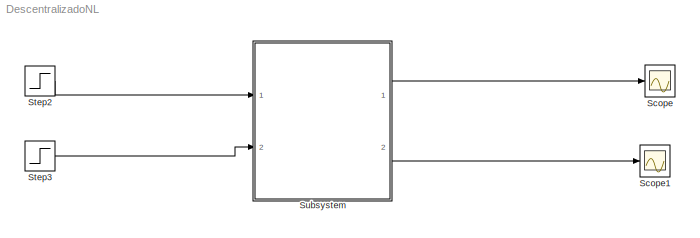
MODEL DescentralizadoNL
KIND model
BLOCK [Scope] Scope
  DataFormat = StructureWithTime
  Floating = off
  NumInputPorts = 1
  Ports = [1]
  SID = 233
  SampleTime = 0
BLOCK [Scope] Scope1
  DataFormat = StructureWithTime
  Floating = off
  NumInputPorts = 1
  Ports = [1]
  SID = 236
  SampleTime = 0
  SaveName = ScopeData1
BLOCK [Step] Step2
  After = QT.ctes.h0(1)*QT.ctes.kc
  Before = QT.ctes.h0(1)*QT.ctes.kc
  SID = 217
  SampleTime = 0
  Time = 200
BLOCK [Step] Step3
  After = QT.ctes.h0(2)*QT.ctes.kc
  Before = QT.ctes.h0(2)*QT.ctes.kc
  SID = 218
  SampleTime = 0
  Time = 1000
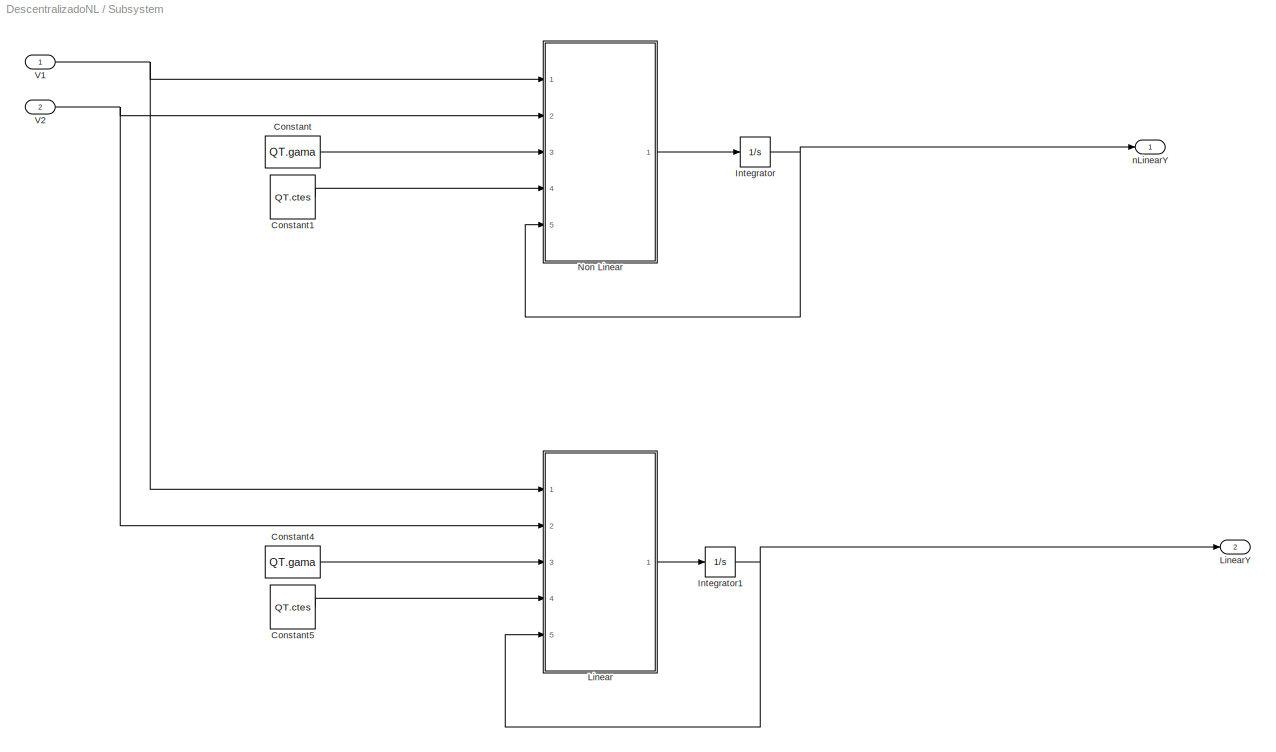
BLOCK [SubSystem] Subsystem
  FunctionWithSeparateData = off
  MaskHideContents = off
  MinAlgLoopOccurrences = off
  Opaque = off
  Ports = [2, 2]
  PropExecContextOutsideSubsystem = off
  RTWSystemCode = Auto
  RequestExecContextInheritance = off
  SID = 179
BLOCK [Constant] Subsystem/Constant
  SID = 182
  Value = QT.gama
BLOCK [Constant] Subsystem/Constant1
  OutDataTypeStr = Bus: slBus1
  SID = 183
  Value = QT.ctes
  VectorParams1D = off
BLOCK [Constant] Subsystem/Constant4
  SID = 185
  Value = QT.gama
BLOCK [Constant] Subsystem/Constant5
  OutDataTypeStr = Bus: slBus1
  SID = 186
  Value = QT.ctes
  VectorParams1D = off
BLOCK [Integrator] Subsystem/Integrator
  InitialCondition = QT.ctes.h0
  Ports = [1, 1]
  SID = 188
BLOCK [Integrator] Subsystem/Integrator1
  Ports = [1, 1]
  SID = 189
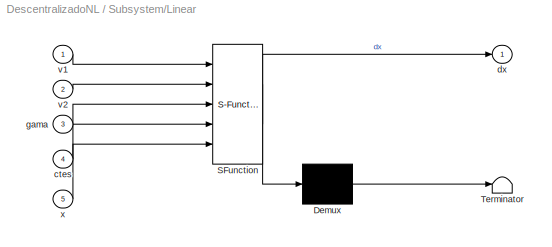
BLOCK [SubSystem] Subsystem/Linear
  ErrorFcn = Stateflow.Translate.translate
  FunctionWithSeparateData = off
  MaskDescription = Embedded MATLAB block
  MaskDisplay = bgColor = Simulink.Root.ColorString2Rgb(get_param(gcbh, 'BackgroundColor')); image(imread('private/eml_membrane_16.png','png','BackgroundColor',bgColor(1:3)),'center'); disp([10 10 'linsys']);
  MaskHideContents = off
  MaskIconFrame = on
  MaskIconOpaque = off
  MaskIconRotate = none
  MaskIconUnits = normalized
  MaskPortRotate = default
  MaskSelfModifiable = on
  MaskType = Stateflow
  MinAlgLoopOccurrences = off
  Opaque = off
  PermitHierarchicalResolution = ExplicitOnly
  Ports = [5, 1]
  PropExecContextOutsideSubsystem = off
  RTWSystemCode = Auto
  RequestExecContextInheritance = off
  SID = 190
  TreatAsAtomicUnit = on
BLOCK [Demux] Subsystem/Linear/ Demux 
  Outputs = 1
  Ports = [1, 1]
  SID = 190::15
BLOCK [S-Function] Subsystem/Linear/ SFunction 
  EnableBusSupport = on
  FunctionName = sf_sfun
  PortCounts = [5 2]
  Ports = [5, 2]
  SID = 190::14
  Tag = Stateflow S-Function DescentralizadoNL 1
BLOCK [Terminator] Subsystem/Linear/ Terminator 
  SID = 190::17
BLOCK [Inport] Subsystem/Linear/ctes
  IconDisplay = Port number
  Port = 4
  SID = 190::21
BLOCK [Outport] Subsystem/Linear/dx
  IconDisplay = Port number
  SID = 190::5
BLOCK [Inport] Subsystem/Linear/gama
  IconDisplay = Port number
  Port = 3
  SID = 190::19
BLOCK [Inport] Subsystem/Linear/v1
  IconDisplay = Port number
  SID = 190::1
BLOCK [Inport] Subsystem/Linear/v2
  IconDisplay = Port number
  Port = 2
  SID = 190::18
BLOCK [Inport] Subsystem/Linear/x
  IconDisplay = Port number
  Port = 5
  SID = 190::20
BLOCK [Outport] Subsystem/LinearY
  IconDisplay = Port number
  Port = 2
  SID = 195
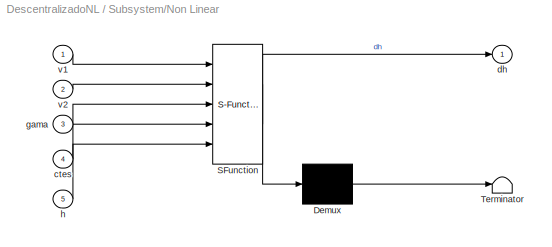
BLOCK [SubSystem] Subsystem/Non Linear
  ErrorFcn = Stateflow.Translate.translate
  FunctionWithSeparateData = off
  MaskDescription = Embedded MATLAB block
  MaskDisplay = bgColor = Simulink.Root.ColorString2Rgb(get_param(gcbh, 'BackgroundColor')); image(imread('private/eml_membrane_16.png','png','BackgroundColor',bgColor(1:3)),'center'); disp([10 10 'fcn']);
  MaskHideContents = off
  MaskIconFrame = on
  MaskIconOpaque = off
  MaskIconRotate = none
  MaskIconUnits = normalized
  MaskPortRotate = default
  MaskSelfModifiable = on
  MaskType = Stateflow
  MinAlgLoopOccurrences = off
  Opaque = off
  PermitHierarchicalResolution = ExplicitOnly
  Ports = [5, 1]
  PropExecContextOutsideSubsystem = off
  RTWSystemCode = Auto
  RequestExecContextInheritance = off
  SID = 191
  TreatAsAtomicUnit = on
BLOCK [Demux] Subsystem/Non Linear/ Demux 
  Outputs = 1
  Ports = [1, 1]
  SID = 191::15
BLOCK [S-Function] Subsystem/Non Linear/ SFunction 
  EnableBusSupport = on
  FunctionName = sf_sfun
  PortCounts = [5 2]
  Ports = [5, 2]
  SID = 191::14
  Tag = Stateflow S-Function DescentralizadoNL 2
BLOCK [Terminator] Subsystem/Non Linear/ Terminator 
  SID = 191::17
BLOCK [Inport] Subsystem/Non Linear/ctes
  IconDisplay = Port number
  Port = 4
  SID = 191::21
BLOCK [Outport] Subsystem/Non Linear/dh
  IconDisplay = Port number
  SID = 191::5
BLOCK [Inport] Subsystem/Non Linear/gama
  IconDisplay = Port number
  Port = 3
  SID = 191::19
BLOCK [Inport] Subsystem/Non Linear/h
  IconDisplay = Port number
  Port = 5
  SID = 191::20
BLOCK [Inport] Subsystem/Non Linear/v1
  IconDisplay = Port number
  SID = 191::1
BLOCK [Inport] Subsystem/Non Linear/v2
  IconDisplay = Port number
  Port = 2
  SID = 191::18
BLOCK [Inport] Subsystem/V1
  IconDisplay = Port number
  SID = 180
BLOCK [Inport] Subsystem/V2
  IconDisplay = Port number
  Port = 2
  SID = 181
BLOCK [Outport] Subsystem/nLinearY
  IconDisplay = Port number
  SID = 194
LINE Step2:1 -> Subsystem:1
LINE Step3:1 -> Subsystem:2
LINE Subsystem/Constant1:1 -> Subsystem/Non Linear:4
LINE Subsystem/Constant4:1 -> Subsystem/Linear:3
LINE Subsystem/Constant5:1 -> Subsystem/Linear:4
LINE Subsystem/Constant:1 -> Subsystem/Non Linear:3
NET Subsystem/Integrator1:1 -> Subsystem/Linear:5, Subsystem/LinearY:1
NET Subsystem/Integrator:1 -> Subsystem/Non Linear:5, Subsystem/nLinearY:1
LINE Subsystem/Linear/ Demux :1 -> Subsystem/Linear/ Terminator :1
LINE Subsystem/Linear/ SFunction :1 -> Subsystem/Linear/ Demux :1
LINE Subsystem/Linear/ SFunction :2 -> Subsystem/Linear/dx:1
LINE Subsystem/Linear/ctes:1 -> Subsystem/Linear/ SFunction :4
LINE Subsystem/Linear/gama:1 -> Subsystem/Linear/ SFunction :3
LINE Subsystem/Linear/v1:1 -> Subsystem/Linear/ SFunction :1
LINE Subsystem/Linear/v2:1 -> Subsystem/Linear/ SFunction :2
LINE Subsystem/Linear/x:1 -> Subsystem/Linear/ SFunction :5
LINE Subsystem/Linear:1 -> Subsystem/Integrator1:1
LINE Subsystem/Non Linear/ Demux :1 -> Subsystem/Non Linear/ Terminator :1
LINE Subsystem/Non Linear/ SFunction :1 -> Subsystem/Non Linear/ Demux :1
LINE Subsystem/Non Linear/ SFunction :2 -> Subsystem/Non Linear/dh:1
LINE Subsystem/Non Linear/ctes:1 -> Subsystem/Non Linear/ SFunction :4
LINE Subsystem/Non Linear/gama:1 -> Subsystem/Non Linear/ SFunction :3
LINE Subsystem/Non Linear/h:1 -> Subsystem/Non Linear/ SFunction :5
LINE Subsystem/Non Linear/v1:1 -> Subsystem/Non Linear/ SFunction :1
LINE Subsystem/Non Linear/v2:1 -> Subsystem/Non Linear/ SFunction :2
LINE Subsystem/Non Linear:1 -> Subsystem/Integrator:1
NET Subsystem/V1:1 -> Subsystem/Linear:1, Subsystem/Non Linear:1
NET Subsystem/V2:1 -> Subsystem/Linear:2, Subsystem/Non Linear:2
LINE Subsystem:1 -> Scope:1
LINE Subsystem:2 -> Scope1:1
note: NET lines group one-source signal fan-out (src -> all destinations, sorted); 1:1 wires keep LINE
CHART Subsystem/Linear states=1 transitions=1
  STATE_LABEL 'eML_blk_kernel()'
CHART Subsystem/Non Linear states=1 transitions=1
  STATE_LABEL 'eML_blk_kernel()'
